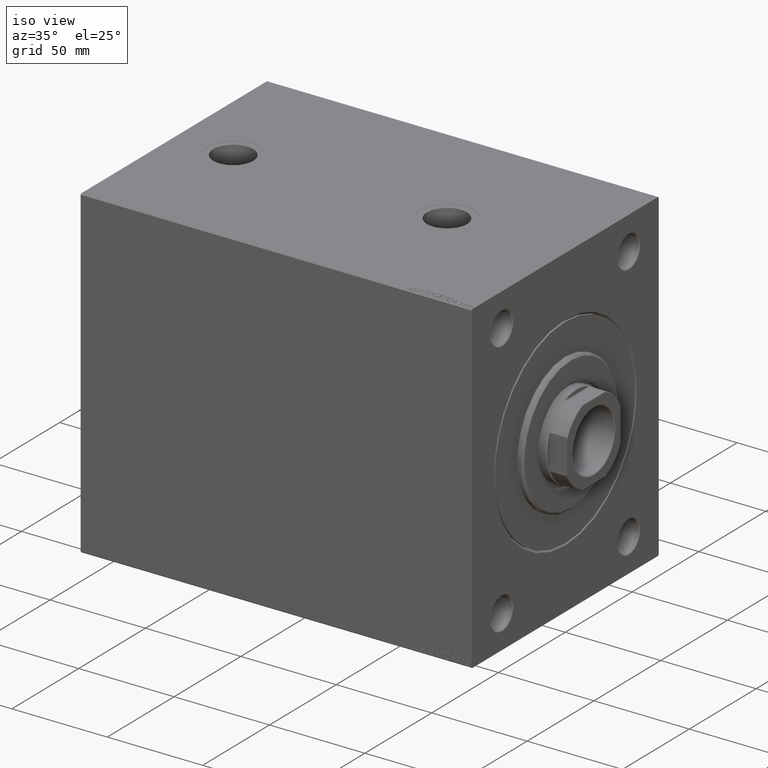
[diagram: clean part render]
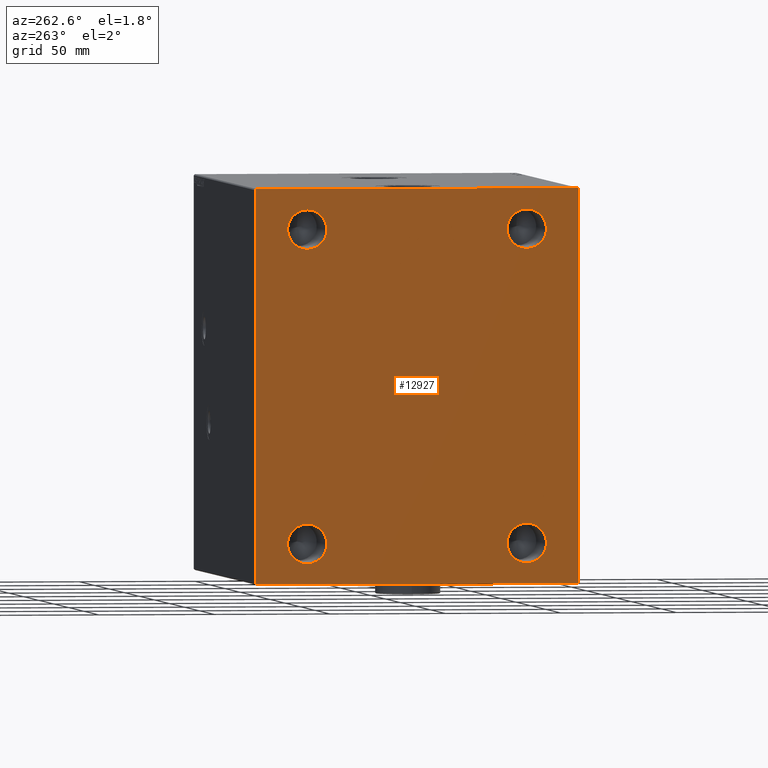
[diagram: tour spotlight — one face highlighted and labeled with its STEP entity id]
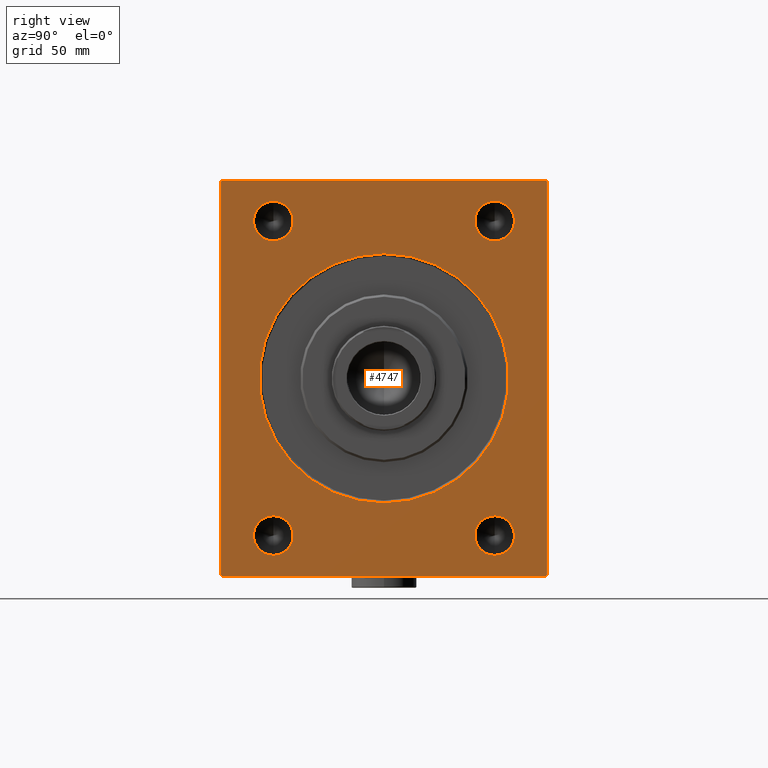
[diagram: tour spotlight — one face highlighted and labeled with its STEP entity id]
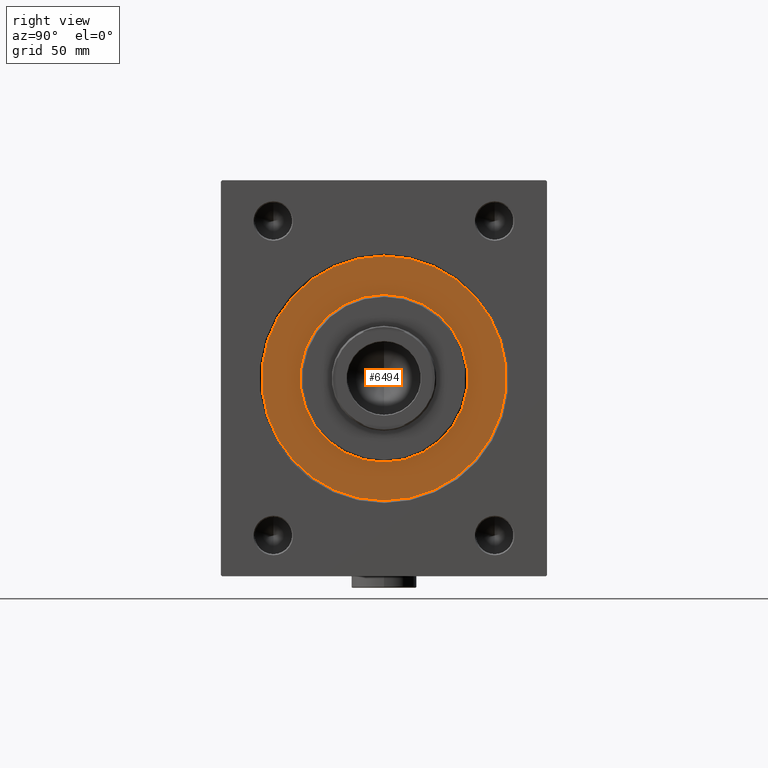
[diagram: tour spotlight — one face highlighted and labeled with its STEP entity id]
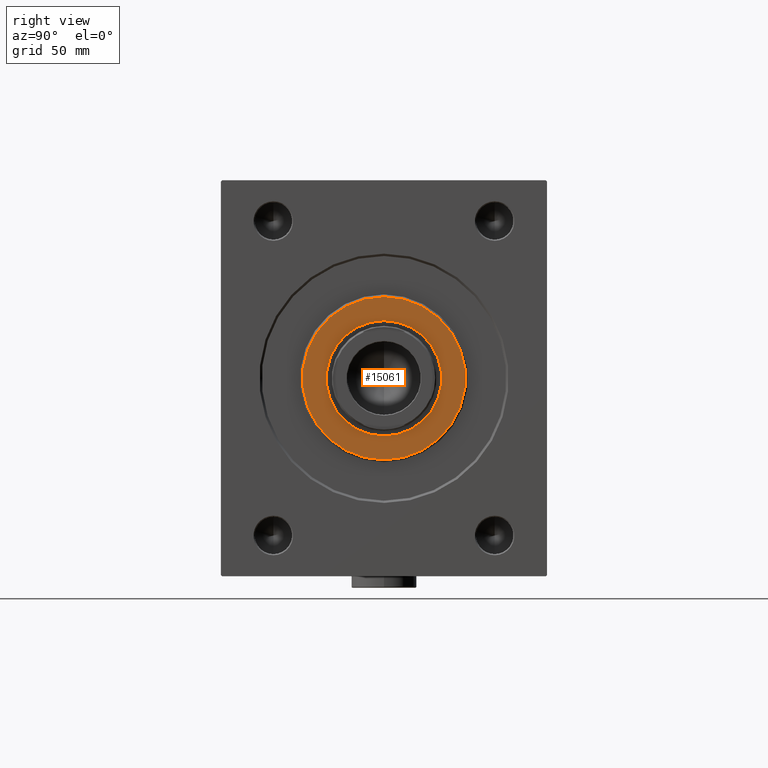
[diagram: tour spotlight — one face highlighted and labeled with its STEP entity id]
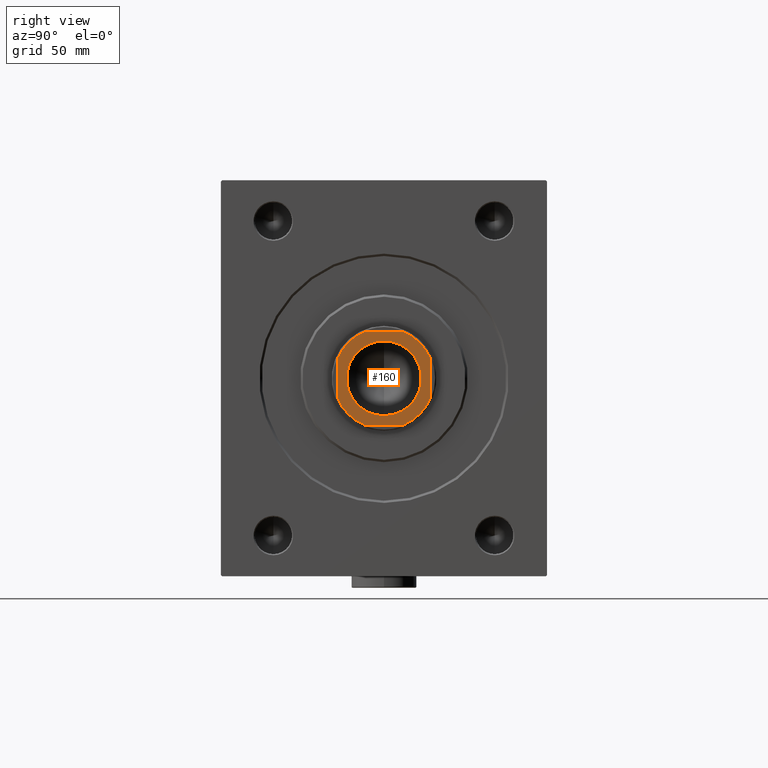
[diagram: tour spotlight — one face highlighted and labeled with its STEP entity id]
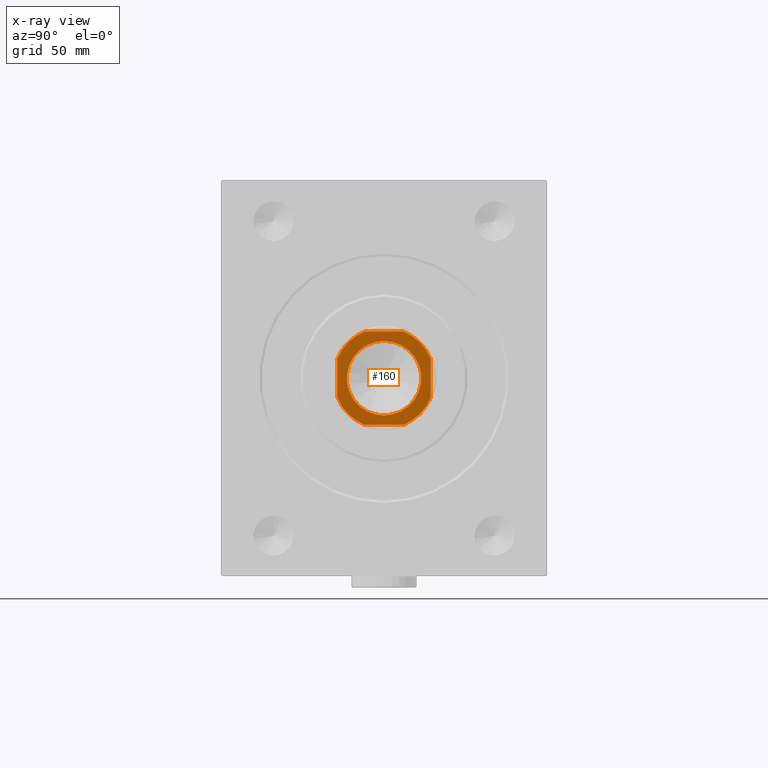
[diagram: x-ray of the same camera — body ghosted, this tour face saturated]
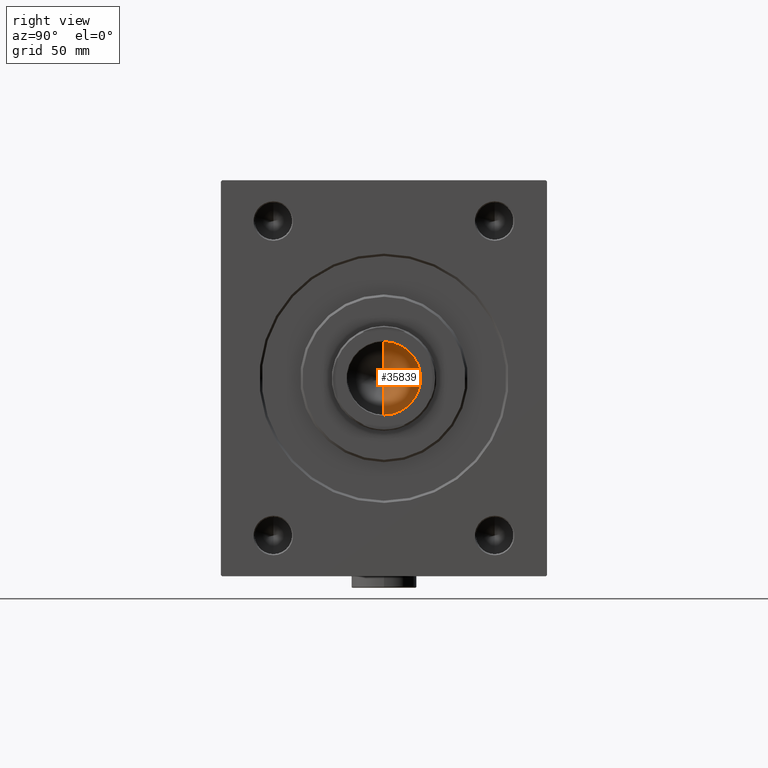
[diagram: tour spotlight — one face highlighted and labeled with its STEP entity id]
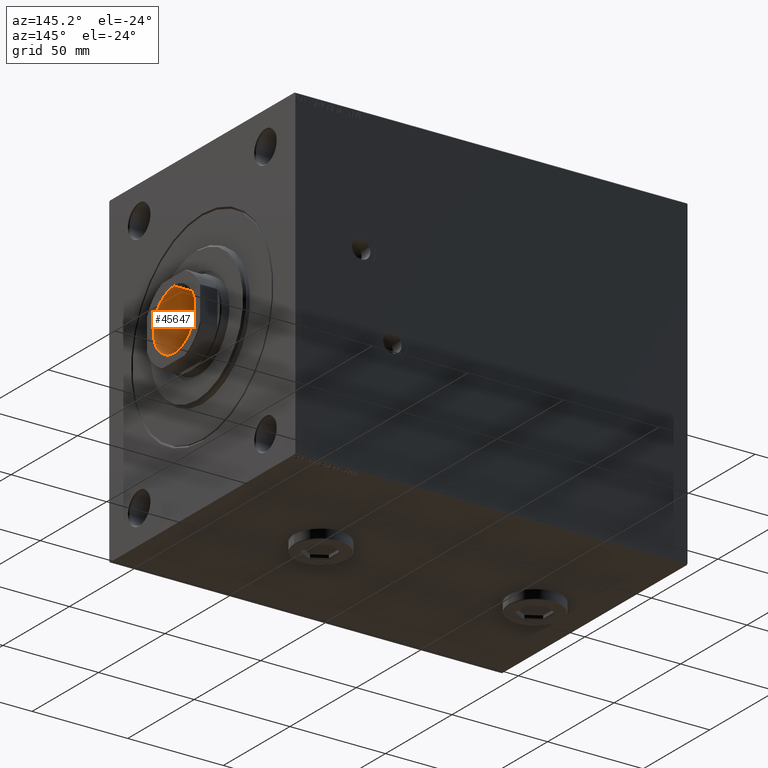
[diagram: tour spotlight — one face highlighted and labeled with its STEP entity id]
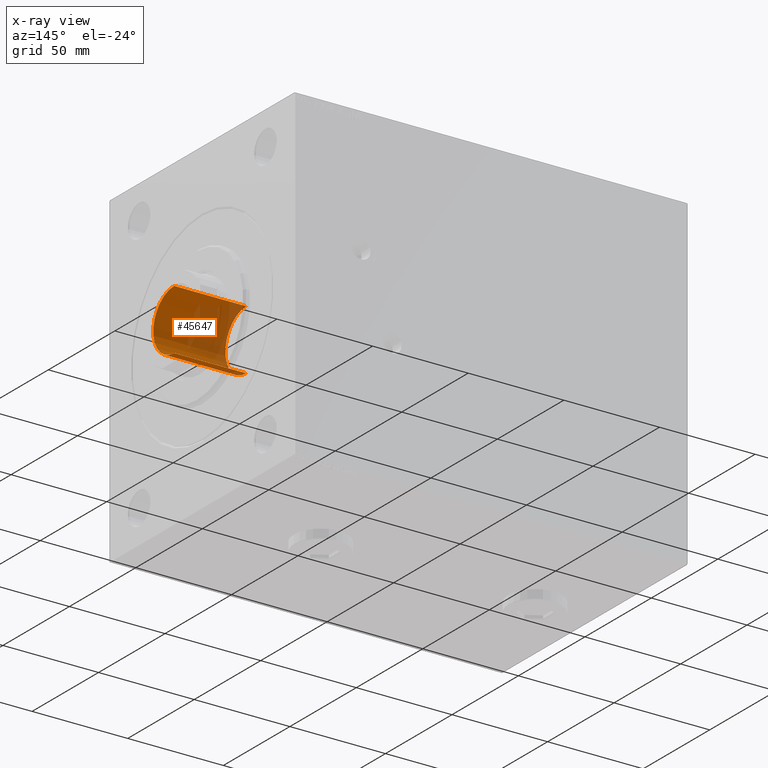
[diagram: x-ray of the same camera — body ghosted, this tour face saturated]
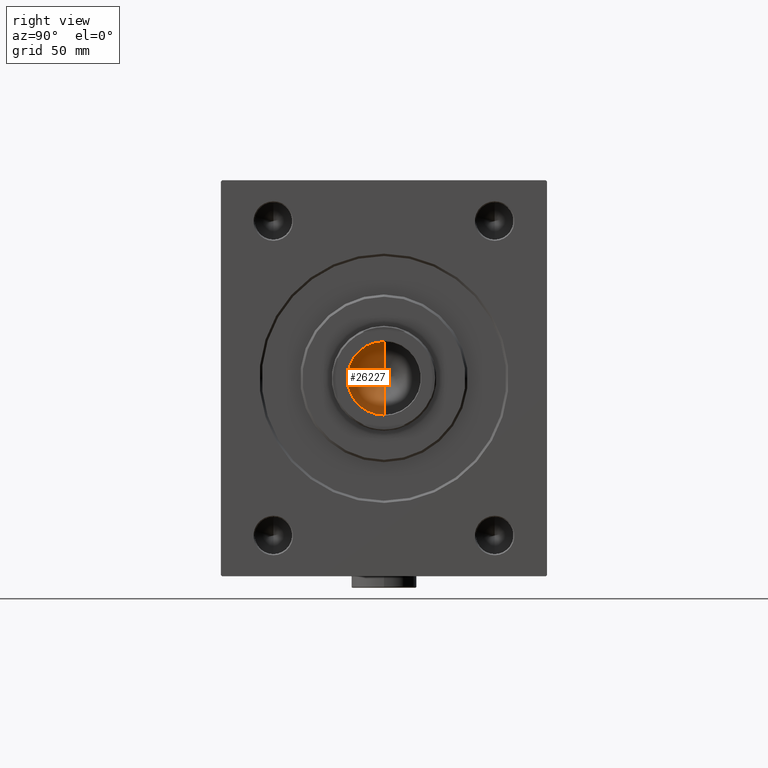
[diagram: tour spotlight — one face highlighted and labeled with its STEP entity id]
A machine part: a face-by-face anatomy tour. The part has 958 B-rep faces; the first image is the clean iso view, then the 8 largest visible faces are spotlighted one at a time (largest first), each with its STEP entity span.

Face 1 — auxiliary view, entity #12927. In plain terms, the highlighted planar face has unit normal (-1, -0, 0).
Definition (entity closure, byte-faithful):
#756 = VECTOR ( 'NONE', #7182, 1000.000000000000000 ) ;
#2176 = DIRECTION ( 'NONE',  ( 0.000000000000000000, 0.000000000000000000, -1.000000000000000000 ) ) ;
#2420 = EDGE_CURVE ( 'NONE', #11282, #5183, #39239, .T. ) ;
#2905 = VECTOR ( 'NONE', #32133, 1000.000000000000000 ) ;
#3338 = CIRCLE ( 'NONE', #21224, 8.500000000000007105 ) ;
#3346 = ORIENTED_EDGE ( 'NONE', *, *, #44763, .T. ) ;
#4212 = VERTEX_POINT ( 'NONE', #20825 ) ;
#4240 = DIRECTION ( 'NONE',  ( 0.000000000000000000, -1.632680918566406300E-16, 1.000000000000000000 ) ) ;
#4301 = VECTOR ( 'NONE', #29737, 1000.000000000000000 ) ;
#4381 = CIRCLE ( 'NONE', #11868, 8.500000000000007105 ) ;
#4383 = EDGE_CURVE ( 'NONE', #35621, #4212, #10798, .T. ) ;
#4433 = EDGE_CURVE ( 'NONE', #4212, #13472, #17793, .T. ) ;
#4461 = CIRCLE ( 'NONE', #29080, 8.500000000000007105 ) ;
#5183 = VERTEX_POINT ( 'NONE', #20396 ) ;
#5482 = CARTESIAN_POINT ( 'NONE',  ( 205.0000000000000000, 69.50000000000002842, 85.00000000000000000 ) ) ;
#5597 = CARTESIAN_POINT ( 'NONE',  ( 205.0000000000000000, -47.50000000000000000, 67.49999999999997158 ) ) ;
#6832 = DIRECTION ( 'NONE',  ( -0.000000000000000000, 0.7071067811865671127, 0.7071067811865279218 ) ) ;
#7182 = DIRECTION ( 'NONE',  ( 0.000000000000000000, 0.000000000000000000, -1.000000000000000000 ) ) ;
#7930 = CARTESIAN_POINT ( 'NONE',  ( 205.0000000000000000, -47.50000000000000000, 58.99999999999995737 ) ) ;
#8017 = CARTESIAN_POINT ( 'NONE',  ( 205.0000000000000000, 70.00000000000000000, 85.00000000000000000 ) ) ;
#8170 = VECTOR ( 'NONE', #36571, 1000.000000000000000 ) ;
#8274 = FACE_BOUND ( 'NONE', #41055, .T. ) ;
#9333 = EDGE_CURVE ( 'NONE', #12948, #33361, #10655, .T. ) ;
#9624 = CARTESIAN_POINT ( 'NONE',  ( 205.0000000000000000, 77.25000000000292744, 77.24999999999650413 ) ) ;
#9746 = DIRECTION ( 'NONE',  ( 0.000000000000000000, 1.000000000000000000, 0.000000000000000000 ) ) ;
#10124 = EDGE_CURVE ( 'NONE', #23479, #17122, #4381, .T. ) ;
#10476 = LINE ( 'NONE', #38973, #756 ) ;
#10655 = LINE ( 'NONE', #17869, #2905 ) ;
#10783 = DIRECTION ( 'NONE',  ( -0.000000000000000000, -0.7071067811865181518, 0.7071067811865769936 ) ) ;
#10798 = LINE ( 'NONE', #21282, #22090 ) ;
#11237 = CARTESIAN_POINT ( 'NONE',  ( 205.0000000000000000, -70.00000000000000000, 84.49999999999991473 ) ) ;
#11282 = VERTEX_POINT ( 'NONE', #33696 ) ;
#11283 = CARTESIAN_POINT ( 'NONE',  ( 205.0000000000000000, 47.50000000000000000, -67.50000000000002842 ) ) ;
#11868 = AXIS2_PLACEMENT_3D ( 'NONE', #21087, #17590, #27417 ) ;
#12023 = PLANE ( 'NONE',  #38833 ) ;
#12121 = CARTESIAN_POINT ( 'NONE',  ( 205.0000000000000000, 69.50000000000002842, -85.00000000000001421 ) ) ;
#12676 = ORIENTED_EDGE ( 'NONE', *, *, #38566, .F. ) ;
#12927 = ADVANCED_FACE ( 'NONE', ( #32570, #39824, #8274, #22493, #29766 ), #12023, .T. ) ;
#12948 = VERTEX_POINT ( 'NONE', #26458 ) ;
#12969 = ORIENTED_EDGE ( 'NONE', *, *, #4383, .T. ) ;
#13043 = EDGE_CURVE ( 'NONE', #19606, #35396, #22364, .T. ) ;
#13261 = LINE ( 'NONE', #35658, #13687 ) ;
#13472 = VERTEX_POINT ( 'NONE', #14543 ) ;
#13687 = VECTOR ( 'NONE', #9746, 1000.000000000000000 ) ;
#13906 = ORIENTED_EDGE ( 'NONE', *, *, #22757, .T. ) ;
#14195 = AXIS2_PLACEMENT_3D ( 'NONE', #25020, #14315, #28082 ) ;
#14315 = DIRECTION ( 'NONE',  ( 1.000000000000000000, -0.000000000000000000, -0.000000000000000000 ) ) ;
#14543 = CARTESIAN_POINT ( 'NONE',  ( 205.0000000000000000, 70.00000000000000000, 84.49999999999998579 ) ) ;
#15004 = CARTESIAN_POINT ( 'NONE',  ( 205.0000000000000000, -47.50000000000000000, -67.50000000000002842 ) ) ;
#15663 = CARTESIAN_POINT ( 'NONE',  ( 205.0000000000000000, -47.50000000000000000, -76.00000000000005684 ) ) ;
#15781 = CARTESIAN_POINT ( 'NONE',  ( 205.0000000000000000, -47.50000000000000000, -59.00000000000001421 ) ) ;
#17068 = ORIENTED_EDGE ( 'NONE', *, *, #13043, .F. ) ;
#17122 = VERTEX_POINT ( 'NONE', #15781 ) ;
#17457 = ORIENTED_EDGE ( 'NONE', *, *, #43352, .F. ) ;
#17590 = DIRECTION ( 'NONE',  ( 1.000000000000000000, -0.000000000000000000, -0.000000000000000000 ) ) ;
#17747 = ORIENTED_EDGE ( 'NONE', *, *, #20537, .F. ) ;
#17793 = LINE ( 'NONE', #39302, #25836 ) ;
#17869 = CARTESIAN_POINT ( 'NONE',  ( 205.0000000000000000, -77.24999999999801048, 77.25000000000230216 ) ) ;
#18044 = ORIENTED_EDGE ( 'NONE', *, *, #35313, .F. ) ;
#18603 = ORIENTED_EDGE ( 'NONE', *, *, #2420, .F. ) ;
#18743 = DIRECTION ( 'NONE',  ( 0.000000000000000000, 0.000000000000000000, -1.000000000000000000 ) ) ;
#19032 = DIRECTION ( 'NONE',  ( 1.000000000000000000, -0.000000000000000000, -0.000000000000000000 ) ) ;
#19058 = AXIS2_PLACEMENT_3D ( 'NONE', #44821, #26797, #27033 ) ;
#19501 = VERTEX_POINT ( 'NONE', #41608 ) ;
#19606 = VERTEX_POINT ( 'NONE', #35272 ) ;
#19865 = ORIENTED_EDGE ( 'NONE', *, *, #10124, .F. ) ;
#20035 = ORIENTED_EDGE ( 'NONE', *, *, #33956, .T. ) ;
#20396 = CARTESIAN_POINT ( 'NONE',  ( 205.0000000000000000, 47.50000000000000000, -76.00000000000005684 ) ) ;
#20537 = EDGE_CURVE ( 'NONE', #19501, #40804, #36933, .T. ) ;
#20825 = CARTESIAN_POINT ( 'NONE',  ( 205.0000000000000000, 70.00000000000002842, -84.50000000000004263 ) ) ;
#20854 = ORIENTED_EDGE ( 'NONE', *, *, #9333, .T. ) ;
#21087 = CARTESIAN_POINT ( 'NONE',  ( 205.0000000000000000, -47.50000000000000000, -67.50000000000002842 ) ) ;
#21224 = AXIS2_PLACEMENT_3D ( 'NONE', #11283, #21524, #25958 ) ;
#21282 = CARTESIAN_POINT ( 'NONE',  ( 205.0000000000000000, 77.24999999999809575, -77.25000000000238742 ) ) ;
#21480 = CIRCLE ( 'NONE', #29717, 8.500000000000007105 ) ;
#21524 = DIRECTION ( 'NONE',  ( 1.000000000000000000, -0.000000000000000000, -0.000000000000000000 ) ) ;
#21649 = ORIENTED_EDGE ( 'NONE', *, *, #26446, .F. ) ;
#22090 = VECTOR ( 'NONE', #6832, 1000.000000000000000 ) ;
#22364 = CIRCLE ( 'NONE', #14195, 8.500000000000007105 ) ;
#22389 = CARTESIAN_POINT ( 'NONE',  ( 205.0000000000000000, -47.50000000000000000, 67.49999999999997158 ) ) ;
#22493 = FACE_BOUND ( 'NONE', #26114, .T. ) ;
#22757 = EDGE_CURVE ( 'NONE', #37744, #35621, #13261, .T. ) ;
#22919 = VERTEX_POINT ( 'NONE', #5482 ) ;
#23333 = DIRECTION ( 'NONE',  ( 1.000000000000000000, -0.000000000000000000, -0.000000000000000000 ) ) ;
#23479 = VERTEX_POINT ( 'NONE', #15663 ) ;
#25020 = CARTESIAN_POINT ( 'NONE',  ( 205.0000000000000000, 47.50000000000000000, 67.49999999999997158 ) ) ;
#25228 = CIRCLE ( 'NONE', #40931, 8.500000000000007105 ) ;
#25748 = ORIENTED_EDGE ( 'NONE', *, *, #42159, .T. ) ;
#25836 = VECTOR ( 'NONE', #4240, 1000.000000000000000 ) ;
#25958 = DIRECTION ( 'NONE',  ( 0.000000000000000000, 0.000000000000000000, -1.000000000000000000 ) ) ;
#26114 = EDGE_LOOP ( 'NONE', ( #18603, #21649 ) ) ;
#26234 = CARTESIAN_POINT ( 'NONE',  ( 205.0000000000000000, 0.000000000000000000, 0.000000000000000000 ) ) ;
#26446 = EDGE_CURVE ( 'NONE', #5183, #11282, #3338, .T. ) ;
#26458 = CARTESIAN_POINT ( 'NONE',  ( 205.0000000000000000, -69.49999999999992895, 84.99999999999997158 ) ) ;
#26797 = DIRECTION ( 'NONE',  ( 1.000000000000000000, -0.000000000000000000, -0.000000000000000000 ) ) ;
#27033 = DIRECTION ( 'NONE',  ( 0.000000000000000000, 0.000000000000000000, -1.000000000000000000 ) ) ;
#27417 = DIRECTION ( 'NONE',  ( 0.000000000000000000, 0.000000000000000000, -1.000000000000000000 ) ) ;
#28082 = DIRECTION ( 'NONE',  ( 0.000000000000000000, 0.000000000000000000, -1.000000000000000000 ) ) ;
#29080 = AXIS2_PLACEMENT_3D ( 'NONE', #36813, #19032, #44294 ) ;
#29182 = EDGE_LOOP ( 'NONE', ( #17457, #17068 ) ) ;
#29260 = DIRECTION ( 'NONE',  ( 1.000000000000000000, -0.000000000000000000, -0.000000000000000000 ) ) ;
#29717 = AXIS2_PLACEMENT_3D ( 'NONE', #15004, #29260, #32297 ) ;
#29737 = DIRECTION ( 'NONE',  ( 0.000000000000000000, -1.000000000000000000, -2.973811673103097665E-16 ) ) ;
#29766 = FACE_OUTER_BOUND ( 'NONE', #44257, .T. ) ;
#31748 = EDGE_CURVE ( 'NONE', #13472, #22919, #41651, .T. ) ;
#32133 = DIRECTION ( 'NONE',  ( 0.000000000000000000, -0.7071067811865671127, -0.7071067811865279218 ) ) ;
#32241 = VERTEX_POINT ( 'NONE', #44824 ) ;
#32297 = DIRECTION ( 'NONE',  ( 0.000000000000000000, 0.000000000000000000, -1.000000000000000000 ) ) ;
#32435 = AXIS2_PLACEMENT_3D ( 'NONE', #22389, #32692, #40413 ) ;
#32570 = FACE_BOUND ( 'NONE', #29182, .T. ) ;
#32692 = DIRECTION ( 'NONE',  ( 1.000000000000000000, -0.000000000000000000, -0.000000000000000000 ) ) ;
#33361 = VERTEX_POINT ( 'NONE', #11237 ) ;
#33696 = CARTESIAN_POINT ( 'NONE',  ( 205.0000000000000000, 47.50000000000000000, -59.00000000000001421 ) ) ;
#33956 = EDGE_CURVE ( 'NONE', #22919, #12948, #40031, .T. ) ;
#35272 = CARTESIAN_POINT ( 'NONE',  ( 205.0000000000000000, 47.50000000000000000, 58.99999999999995737 ) ) ;
#35313 = EDGE_CURVE ( 'NONE', #40804, #19501, #25228, .T. ) ;
#35396 = VERTEX_POINT ( 'NONE', #42756 ) ;
#35621 = VERTEX_POINT ( 'NONE', #12121 ) ;
#35658 = CARTESIAN_POINT ( 'NONE',  ( 205.0000000000000000, -70.00000000000000000, -85.00000000000001421 ) ) ;
#36571 = DIRECTION ( 'NONE',  ( -0.000000000000000000, 0.7071067811865279218, -0.7071067811865671127 ) ) ;
#36813 = CARTESIAN_POINT ( 'NONE',  ( 205.0000000000000000, 47.50000000000000000, 67.49999999999997158 ) ) ;
#36933 = CIRCLE ( 'NONE', #32435, 8.500000000000007105 ) ;
#37744 = VERTEX_POINT ( 'NONE', #43056 ) ;
#37820 = VECTOR ( 'NONE', #10783, 1000.000000000000000 ) ;
#38566 = EDGE_CURVE ( 'NONE', #17122, #23479, #21480, .T. ) ;
#38833 = AXIS2_PLACEMENT_3D ( 'NONE', #26234, #40974, #2176 ) ;
#38893 = ORIENTED_EDGE ( 'NONE', *, *, #31748, .T. ) ;
#38973 = CARTESIAN_POINT ( 'NONE',  ( 205.0000000000000000, -70.00000000000000000, 84.99999999999997158 ) ) ;
#38985 = EDGE_LOOP ( 'NONE', ( #17747, #18044 ) ) ;
#39239 = CIRCLE ( 'NONE', #19058, 8.500000000000007105 ) ;
#39302 = CARTESIAN_POINT ( 'NONE',  ( 205.0000000000000000, 70.00000000000002842, -85.00000000000001421 ) ) ;
#39824 = FACE_BOUND ( 'NONE', #38985, .T. ) ;
#40031 = LINE ( 'NONE', #8017, #4301 ) ;
#40315 = LINE ( 'NONE', #43131, #8170 ) ;
#40413 = DIRECTION ( 'NONE',  ( 0.000000000000000000, 0.000000000000000000, -1.000000000000000000 ) ) ;
#40804 = VERTEX_POINT ( 'NONE', #7930 ) ;
#40931 = AXIS2_PLACEMENT_3D ( 'NONE', #5597, #23333, #18743 ) ;
#40974 = DIRECTION ( 'NONE',  ( 1.000000000000000000, 0.000000000000000000, 0.000000000000000000 ) ) ;
#41055 = EDGE_LOOP ( 'NONE', ( #12676, #19865 ) ) ;
#41608 = CARTESIAN_POINT ( 'NONE',  ( 205.0000000000000000, -47.50000000000000000, 76.00000000000000000 ) ) ;
#41651 = LINE ( 'NONE', #9624, #37820 ) ;
#42155 = ORIENTED_EDGE ( 'NONE', *, *, #4433, .T. ) ;
#42159 = EDGE_CURVE ( 'NONE', #32241, #37744, #40315, .T. ) ;
#42756 = CARTESIAN_POINT ( 'NONE',  ( 205.0000000000000000, 47.50000000000000000, 76.00000000000000000 ) ) ;
#43056 = CARTESIAN_POINT ( 'NONE',  ( 205.0000000000000000, -69.50000000000002842, -85.00000000000001421 ) ) ;
#43131 = CARTESIAN_POINT ( 'NONE',  ( 205.0000000000000000, -77.25000000000196110, -77.24999999999766942 ) ) ;
#43352 = EDGE_CURVE ( 'NONE', #35396, #19606, #4461, .T. ) ;
#44257 = EDGE_LOOP ( 'NONE', ( #20035, #20854, #3346, #25748, #13906, #12969, #42155, #38893 ) ) ;
#44294 = DIRECTION ( 'NONE',  ( 0.000000000000000000, 0.000000000000000000, -1.000000000000000000 ) ) ;
#44763 = EDGE_CURVE ( 'NONE', #33361, #32241, #10476, .T. ) ;
#44821 = CARTESIAN_POINT ( 'NONE',  ( 205.0000000000000000, 47.50000000000000000, -67.50000000000002842 ) ) ;
#44824 = CARTESIAN_POINT ( 'NONE',  ( 205.0000000000000000, -70.00000000000000000, -84.50000000000001421 ) ) ;

Face 2 — right view, entity #4747. In plain terms, the highlighted planar face has unit normal (-1, -0, 0).
Definition (entity closure, byte-faithful):
#226 = DIRECTION ( 'NONE',  ( 1.000000000000000000, 0.000000000000000000, 0.000000000000000000 ) ) ;
#403 = CARTESIAN_POINT ( 'NONE',  ( 0.000000000000000000, 70.00000000000000000, 85.00000000000000000 ) ) ;
#852 = VERTEX_POINT ( 'NONE', #7940 ) ;
#1469 = DIRECTION ( 'NONE',  ( 1.000000000000000000, 0.000000000000000000, 0.000000000000000000 ) ) ;
#1688 = DIRECTION ( 'NONE',  ( 0.000000000000000000, 0.000000000000000000, -1.000000000000000000 ) ) ;
#1873 = CARTESIAN_POINT ( 'NONE',  ( 0.000000000000000000, -70.00000000000000000, -84.50000000000001421 ) ) ;
#1888 = EDGE_CURVE ( 'NONE', #13637, #35581, #8188, .T. ) ;
#2109 = DIRECTION ( 'NONE',  ( 0.000000000000000000, 0.000000000000000000, -1.000000000000000000 ) ) ;
#2396 = CARTESIAN_POINT ( 'NONE',  ( 0.000000000000000000, 47.50000000000000000, 67.49999999999997158 ) ) ;
#2563 = CARTESIAN_POINT ( 'NONE',  ( 0.000000000000000000, -70.00000000000000000, 84.49999999999991473 ) ) ;
#2856 = LINE ( 'NONE', #24327, #38987 ) ;
#3275 = ORIENTED_EDGE ( 'NONE', *, *, #12300, .T. ) ;
#3738 = AXIS2_PLACEMENT_3D ( 'NONE', #34344, #19607, #2109 ) ;
#4142 = DIRECTION ( 'NONE',  ( 0.000000000000000000, -1.000000000000000000, -2.973811673103097665E-16 ) ) ;
#4343 = DIRECTION ( 'NONE',  ( 1.000000000000000000, 0.000000000000000000, 0.000000000000000000 ) ) ;
#4747 = ADVANCED_FACE ( 'NONE', ( #46041, #39488, #13796, #42994, #25206, #17970 ), #10288, .F. ) ;
#5494 = CARTESIAN_POINT ( 'NONE',  ( 0.000000000000000000, 69.50000000000002842, 85.00000000000000000 ) ) ;
#6376 = VERTEX_POINT ( 'NONE', #41425 ) ;
#6567 = ORIENTED_EDGE ( 'NONE', *, *, #38723, .T. ) ;
#6641 = VERTEX_POINT ( 'NONE', #1873 ) ;
#6688 = VERTEX_POINT ( 'NONE', #2563 ) ;
#7475 = DIRECTION ( 'NONE',  ( 0.000000000000000000, 0.000000000000000000, -1.000000000000000000 ) ) ;
#7940 = CARTESIAN_POINT ( 'NONE',  ( 0.000000000000000000, 6.551860375438349359E-15, -53.50000000000007816 ) ) ;
#8029 = CARTESIAN_POINT ( 'NONE',  ( 0.000000000000000000, 0.000000000000000000, 0.000000000000000000 ) ) ;
#8188 = LINE ( 'NONE', #19125, #28012 ) ;
#8395 = DIRECTION ( 'NONE',  ( 0.000000000000000000, 0.000000000000000000, -1.000000000000000000 ) ) ;
#8462 = ORIENTED_EDGE ( 'NONE', *, *, #19389, .T. ) ;
#8934 = AXIS2_PLACEMENT_3D ( 'NONE', #12531, #30734, #23696 ) ;
#8964 = CIRCLE ( 'NONE', #8934, 8.500000000000007105 ) ;
#9214 = DIRECTION ( 'NONE',  ( 1.000000000000000000, 0.000000000000000000, 0.000000000000000000 ) ) ;
#9807 = DIRECTION ( 'NONE',  ( 1.000000000000000000, 0.000000000000000000, 0.000000000000000000 ) ) ;
#10288 = PLANE ( 'NONE',  #16932 ) ;
#10732 = LINE ( 'NONE', #45564, #35687 ) ;
#10788 = ORIENTED_EDGE ( 'NONE', *, *, #1888, .F. ) ;
#10875 = VERTEX_POINT ( 'NONE', #43607 ) ;
#11195 = AXIS2_PLACEMENT_3D ( 'NONE', #2396, #1469, #45160 ) ;
#11216 = CIRCLE ( 'NONE', #3738, 53.50000000000007816 ) ;
#11688 = VERTEX_POINT ( 'NONE', #24909 ) ;
#11899 = DIRECTION ( 'NONE',  ( -0.000000000000000000, -0.7071067811865279218, 0.7071067811865671127 ) ) ;
#12206 = VERTEX_POINT ( 'NONE', #32793 ) ;
#12300 = EDGE_CURVE ( 'NONE', #28219, #34996, #14916, .T. ) ;
#12531 = CARTESIAN_POINT ( 'NONE',  ( 0.000000000000000000, -47.50000000000000000, 67.49999999999997158 ) ) ;
#12804 = DIRECTION ( 'NONE',  ( 0.000000000000000000, -1.632680918566406300E-16, 1.000000000000000000 ) ) ;
#13010 = EDGE_LOOP ( 'NONE', ( #15702, #8462, #44990, #16243, #35232, #13871, #10788, #14271 ) ) ;
#13029 = CARTESIAN_POINT ( 'NONE',  ( 0.000000000000000000, 70.00000000000002842, -85.00000000000001421 ) ) ;
#13637 = VERTEX_POINT ( 'NONE', #40014 ) ;
#13796 = FACE_BOUND ( 'NONE', #16979, .T. ) ;
#13871 = ORIENTED_EDGE ( 'NONE', *, *, #46024, .T. ) ;
#14271 = ORIENTED_EDGE ( 'NONE', *, *, #23884, .T. ) ;
#14916 = CIRCLE ( 'NONE', #11195, 8.500000000000007105 ) ;
#15084 = CARTESIAN_POINT ( 'NONE',  ( 0.000000000000000000, -47.50000000000000000, 67.49999999999997158 ) ) ;
#15104 = LINE ( 'NONE', #5494, #20855 ) ;
#15325 = EDGE_CURVE ( 'NONE', #34996, #28219, #19355, .T. ) ;
#15378 = CARTESIAN_POINT ( 'NONE',  ( 0.000000000000000000, -69.50000000000002842, -85.00000000000001421 ) ) ;
#15515 = VERTEX_POINT ( 'NONE', #20282 ) ;
#15627 = DIRECTION ( 'NONE',  ( 1.000000000000000000, 0.000000000000000000, 0.000000000000000000 ) ) ;
#15657 = CARTESIAN_POINT ( 'NONE',  ( 0.000000000000000000, -47.50000000000000000, -59.00000000000002132 ) ) ;
#15702 = ORIENTED_EDGE ( 'NONE', *, *, #35457, .F. ) ;
#16243 = ORIENTED_EDGE ( 'NONE', *, *, #17055, .T. ) ;
#16932 = AXIS2_PLACEMENT_3D ( 'NONE', #32231, #226, #7475 ) ;
#16979 = EDGE_LOOP ( 'NONE', ( #20786, #32537 ) ) ;
#17024 = AXIS2_PLACEMENT_3D ( 'NONE', #8029, #26443, #1688 ) ;
#17055 = EDGE_CURVE ( 'NONE', #10875, #19971, #15104, .T. ) ;
#17636 = VERTEX_POINT ( 'NONE', #36713 ) ;
#17807 = EDGE_LOOP ( 'NONE', ( #43768, #26591 ) ) ;
#17970 = FACE_OUTER_BOUND ( 'NONE', #13010, .T. ) ;
#18139 = VERTEX_POINT ( 'NONE', #19214 ) ;
#18819 = DIRECTION ( 'NONE',  ( -0.000000000000000000, 0.7071067811865181518, -0.7071067811865769936 ) ) ;
#19125 = CARTESIAN_POINT ( 'NONE',  ( 0.000000000000000000, -70.00000000000000000, -85.00000000000001421 ) ) ;
#19166 = DIRECTION ( 'NONE',  ( 0.000000000000000000, 0.000000000000000000, -1.000000000000000000 ) ) ;
#19214 = CARTESIAN_POINT ( 'NONE',  ( 0.000000000000000000, 70.00000000000002842, -84.50000000000004263 ) ) ;
#19355 = CIRCLE ( 'NONE', #30551, 8.500000000000007105 ) ;
#19389 = EDGE_CURVE ( 'NONE', #6688, #15515, #2856, .T. ) ;
#19607 = DIRECTION ( 'NONE',  ( 1.000000000000000000, 0.000000000000000000, 0.000000000000000000 ) ) ;
#19759 = CARTESIAN_POINT ( 'NONE',  ( 0.000000000000000000, 47.50000000000000000, 75.99999999999998579 ) ) ;
#19971 = VERTEX_POINT ( 'NONE', #45752 ) ;
#20049 = ORIENTED_EDGE ( 'NONE', *, *, #32002, .T. ) ;
#20171 = CARTESIAN_POINT ( 'NONE',  ( 0.000000000000000000, 47.50000000000000000, 67.49999999999997158 ) ) ;
#20282 = CARTESIAN_POINT ( 'NONE',  ( 0.000000000000000000, -69.49999999999992895, 84.99999999999997158 ) ) ;
#20786 = ORIENTED_EDGE ( 'NONE', *, *, #29181, .T. ) ;
#20815 = EDGE_CURVE ( 'NONE', #10875, #15515, #22336, .T. ) ;
#20855 = VECTOR ( 'NONE', #18819, 1000.000000000000000 ) ;
#21050 = DIRECTION ( 'NONE',  ( -0.000000000000000000, 0.7071067811865671127, 0.7071067811865279218 ) ) ;
#21978 = EDGE_LOOP ( 'NONE', ( #3275, #24238 ) ) ;
#22336 = LINE ( 'NONE', #403, #29886 ) ;
#22812 = LINE ( 'NONE', #13029, #44435 ) ;
#22911 = LINE ( 'NONE', #26654, #44107 ) ;
#23696 = DIRECTION ( 'NONE',  ( 0.000000000000000000, 0.000000000000000000, -1.000000000000000000 ) ) ;
#23884 = EDGE_CURVE ( 'NONE', #13637, #6641, #40845, .T. ) ;
#23926 = ORIENTED_EDGE ( 'NONE', *, *, #37841, .T. ) ;
#24238 = ORIENTED_EDGE ( 'NONE', *, *, #15325, .T. ) ;
#24327 = CARTESIAN_POINT ( 'NONE',  ( 0.000000000000000000, -70.00000000000000000, 84.49999999999991473 ) ) ;
#24909 = CARTESIAN_POINT ( 'NONE',  ( 0.000000000000000000, -47.50000000000000000, 58.99999999999997158 ) ) ;
#25163 = CIRCLE ( 'NONE', #29685, 8.500000000000007105 ) ;
#25206 = FACE_BOUND ( 'NONE', #31911, .T. ) ;
#26443 = DIRECTION ( 'NONE',  ( 1.000000000000000000, 0.000000000000000000, 0.000000000000000000 ) ) ;
#26591 = ORIENTED_EDGE ( 'NONE', *, *, #43616, .T. ) ;
#26654 = CARTESIAN_POINT ( 'NONE',  ( 0.000000000000000000, 70.00000000000002842, -84.50000000000004263 ) ) ;
#27546 = DIRECTION ( 'NONE',  ( 0.000000000000000000, 0.000000000000000000, -1.000000000000000000 ) ) ;
#28012 = VECTOR ( 'NONE', #36455, 1000.000000000000000 ) ;
#28209 = CIRCLE ( 'NONE', #35681, 8.500000000000007105 ) ;
#28215 = CIRCLE ( 'NONE', #17024, 53.50000000000007816 ) ;
#28219 = VERTEX_POINT ( 'NONE', #19759 ) ;
#28703 = CARTESIAN_POINT ( 'NONE',  ( 0.000000000000000000, -47.50000000000000000, -76.00000000000004263 ) ) ;
#29020 = EDGE_LOOP ( 'NONE', ( #6567, #20049 ) ) ;
#29062 = EDGE_CURVE ( 'NONE', #18139, #19971, #22812, .T. ) ;
#29181 = EDGE_CURVE ( 'NONE', #42431, #11688, #43709, .T. ) ;
#29685 = AXIS2_PLACEMENT_3D ( 'NONE', #43518, #32756, #19166 ) ;
#29886 = VECTOR ( 'NONE', #4142, 1000.000000000000000 ) ;
#30348 = AXIS2_PLACEMENT_3D ( 'NONE', #44406, #9807, #30372 ) ;
#30372 = DIRECTION ( 'NONE',  ( 0.000000000000000000, 0.000000000000000000, -1.000000000000000000 ) ) ;
#30551 = AXIS2_PLACEMENT_3D ( 'NONE', #20171, #9214, #33740 ) ;
#30734 = DIRECTION ( 'NONE',  ( 1.000000000000000000, 0.000000000000000000, 0.000000000000000000 ) ) ;
#31520 = CARTESIAN_POINT ( 'NONE',  ( 0.000000000000000000, 47.50000000000000000, 58.99999999999997158 ) ) ;
#31850 = CIRCLE ( 'NONE', #30348, 8.500000000000007105 ) ;
#31911 = EDGE_LOOP ( 'NONE', ( #44496, #23926 ) ) ;
#32002 = EDGE_CURVE ( 'NONE', #35576, #34821, #31850, .T. ) ;
#32152 = DIRECTION ( 'NONE',  ( 0.000000000000000000, 0.000000000000000000, -1.000000000000000000 ) ) ;
#32231 = CARTESIAN_POINT ( 'NONE',  ( 0.000000000000000000, 0.000000000000000000, 0.000000000000000000 ) ) ;
#32537 = ORIENTED_EDGE ( 'NONE', *, *, #44244, .T. ) ;
#32756 = DIRECTION ( 'NONE',  ( 1.000000000000000000, 0.000000000000000000, 0.000000000000000000 ) ) ;
#32793 = CARTESIAN_POINT ( 'NONE',  ( 0.000000000000000000, 0.000000000000000000, 53.50000000000007816 ) ) ;
#33217 = DIRECTION ( 'NONE',  ( 0.000000000000000000, -0.7071067811865671127, -0.7071067811865279218 ) ) ;
#33740 = DIRECTION ( 'NONE',  ( 0.000000000000000000, 0.000000000000000000, -1.000000000000000000 ) ) ;
#34344 = CARTESIAN_POINT ( 'NONE',  ( 0.000000000000000000, 0.000000000000000000, 0.000000000000000000 ) ) ;
#34369 = DIRECTION ( 'NONE',  ( 0.000000000000000000, 0.000000000000000000, -1.000000000000000000 ) ) ;
#34821 = VERTEX_POINT ( 'NONE', #15657 ) ;
#34939 = CIRCLE ( 'NONE', #40928, 8.500000000000007105 ) ;
#34996 = VERTEX_POINT ( 'NONE', #31520 ) ;
#35232 = ORIENTED_EDGE ( 'NONE', *, *, #29062, .F. ) ;
#35457 = EDGE_CURVE ( 'NONE', #6688, #6641, #10732, .T. ) ;
#35576 = VERTEX_POINT ( 'NONE', #28703 ) ;
#35581 = VERTEX_POINT ( 'NONE', #39469 ) ;
#35681 = AXIS2_PLACEMENT_3D ( 'NONE', #41398, #42084, #34369 ) ;
#35687 = VECTOR ( 'NONE', #27546, 1000.000000000000000 ) ;
#36032 = EDGE_CURVE ( 'NONE', #12206, #852, #28215, .T. ) ;
#36455 = DIRECTION ( 'NONE',  ( 0.000000000000000000, 1.000000000000000000, 0.000000000000000000 ) ) ;
#36713 = CARTESIAN_POINT ( 'NONE',  ( 0.000000000000000000, 47.50000000000000000, -59.00000000000002132 ) ) ;
#37841 = EDGE_CURVE ( 'NONE', #6376, #17636, #25163, .T. ) ;
#38640 = CARTESIAN_POINT ( 'NONE',  ( 0.000000000000000000, -47.50000000000000000, 75.99999999999998579 ) ) ;
#38723 = EDGE_CURVE ( 'NONE', #34821, #35576, #28209, .T. ) ;
#38987 = VECTOR ( 'NONE', #21050, 1000.000000000000000 ) ;
#39106 = VECTOR ( 'NONE', #11899, 1000.000000000000000 ) ;
#39469 = CARTESIAN_POINT ( 'NONE',  ( 0.000000000000000000, 69.50000000000002842, -85.00000000000001421 ) ) ;
#39488 = FACE_BOUND ( 'NONE', #29020, .T. ) ;
#39967 = AXIS2_PLACEMENT_3D ( 'NONE', #15084, #4343, #32152 ) ;
#40014 = CARTESIAN_POINT ( 'NONE',  ( 0.000000000000000000, -69.50000000000002842, -85.00000000000001421 ) ) ;
#40188 = CARTESIAN_POINT ( 'NONE',  ( 0.000000000000000000, 47.50000000000000000, -67.50000000000002842 ) ) ;
#40777 = EDGE_CURVE ( 'NONE', #17636, #6376, #34939, .T. ) ;
#40845 = LINE ( 'NONE', #15378, #39106 ) ;
#40928 = AXIS2_PLACEMENT_3D ( 'NONE', #40188, #15627, #8395 ) ;
#41398 = CARTESIAN_POINT ( 'NONE',  ( 0.000000000000000000, -47.50000000000000000, -67.50000000000002842 ) ) ;
#41425 = CARTESIAN_POINT ( 'NONE',  ( 0.000000000000000000, 47.50000000000000000, -76.00000000000004263 ) ) ;
#42084 = DIRECTION ( 'NONE',  ( 1.000000000000000000, 0.000000000000000000, 0.000000000000000000 ) ) ;
#42431 = VERTEX_POINT ( 'NONE', #38640 ) ;
#42994 = FACE_BOUND ( 'NONE', #21978, .T. ) ;
#43518 = CARTESIAN_POINT ( 'NONE',  ( 0.000000000000000000, 47.50000000000000000, -67.50000000000002842 ) ) ;
#43607 = CARTESIAN_POINT ( 'NONE',  ( 0.000000000000000000, 69.50000000000002842, 85.00000000000000000 ) ) ;
#43616 = EDGE_CURVE ( 'NONE', #852, #12206, #11216, .T. ) ;
#43709 = CIRCLE ( 'NONE', #39967, 8.500000000000007105 ) ;
#43768 = ORIENTED_EDGE ( 'NONE', *, *, #36032, .T. ) ;
#44107 = VECTOR ( 'NONE', #33217, 1000.000000000000000 ) ;
#44244 = EDGE_CURVE ( 'NONE', #11688, #42431, #8964, .T. ) ;
#44406 = CARTESIAN_POINT ( 'NONE',  ( 0.000000000000000000, -47.50000000000000000, -67.50000000000002842 ) ) ;
#44435 = VECTOR ( 'NONE', #12804, 1000.000000000000000 ) ;
#44496 = ORIENTED_EDGE ( 'NONE', *, *, #40777, .T. ) ;
#44990 = ORIENTED_EDGE ( 'NONE', *, *, #20815, .F. ) ;
#45160 = DIRECTION ( 'NONE',  ( 0.000000000000000000, 0.000000000000000000, -1.000000000000000000 ) ) ;
#45564 = CARTESIAN_POINT ( 'NONE',  ( 0.000000000000000000, -70.00000000000000000, 84.99999999999997158 ) ) ;
#45752 = CARTESIAN_POINT ( 'NONE',  ( 0.000000000000000000, 70.00000000000000000, 84.49999999999998579 ) ) ;
#46024 = EDGE_CURVE ( 'NONE', #18139, #35581, #22911, .T. ) ;
#46041 = FACE_BOUND ( 'NONE', #17807, .T. ) ;

Face 3 — right view, entity #6494. In plain terms, the highlighted planar face has unit normal (-1, 0, 0).
Definition (entity closure, byte-faithful):
#5326 = DIRECTION ( 'NONE',  ( -1.000000000000000000, 0.000000000000000000, 0.000000000000000000 ) ) ;
#5949 = CARTESIAN_POINT ( 'NONE',  ( 0.000000000000000000, 0.000000000000000000, 0.000000000000000000 ) ) ;
#6494 = ADVANCED_FACE ( 'NONE', ( #29001, #43272 ), #11259, .F. ) ;
#7362 = EDGE_CURVE ( 'NONE', #32008, #35529, #40904, .T. ) ;
#8360 = DIRECTION ( 'NONE',  ( 0.000000000000000000, 0.000000000000000000, -1.000000000000000000 ) ) ;
#8608 = CARTESIAN_POINT ( 'NONE',  ( 0.000000000000000000, 0.000000000000000000, 0.000000000000000000 ) ) ;
#8839 = DIRECTION ( 'NONE',  ( 0.000000000000000000, 0.000000000000000000, 1.000000000000000000 ) ) ;
#10284 = AXIS2_PLACEMENT_3D ( 'NONE', #21345, #31649, #20412 ) ;
#11259 = PLANE ( 'NONE',  #17713 ) ;
#11457 = EDGE_LOOP ( 'NONE', ( #17179, #45179 ) ) ;
#12409 = DIRECTION ( 'NONE',  ( 0.000000000000000000, 0.000000000000000000, 1.000000000000000000 ) ) ;
#13316 = AXIS2_PLACEMENT_3D ( 'NONE', #18848, #40382, #8360 ) ;
#13325 = CARTESIAN_POINT ( 'NONE',  ( 0.000000000000000000, 6.429395695523603956E-15, 52.50000000000000000 ) ) ;
#14696 = ORIENTED_EDGE ( 'NONE', *, *, #37453, .F. ) ;
#17179 = ORIENTED_EDGE ( 'NONE', *, *, #35977, .F. ) ;
#17713 = AXIS2_PLACEMENT_3D ( 'NONE', #19384, #22432, #12409 ) ;
#17729 = CIRCLE ( 'NONE', #42376, 52.50000000000000000 ) ;
#18308 = ORIENTED_EDGE ( 'NONE', *, *, #7362, .F. ) ;
#18848 = CARTESIAN_POINT ( 'NONE',  ( 0.000000000000000000, 0.000000000000000000, 0.000000000000000000 ) ) ;
#19248 = AXIS2_PLACEMENT_3D ( 'NONE', #5949, #45455, #38197 ) ;
#19384 = CARTESIAN_POINT ( 'NONE',  ( 0.000000000000000000, 0.000000000000000000, 0.000000000000000000 ) ) ;
#20412 = DIRECTION ( 'NONE',  ( 0.000000000000000000, 0.000000000000000000, 1.000000000000000000 ) ) ;
#21345 = CARTESIAN_POINT ( 'NONE',  ( 0.000000000000000000, 0.000000000000000000, 0.000000000000000000 ) ) ;
#22432 = DIRECTION ( 'NONE',  ( -1.000000000000000000, 0.000000000000000000, 0.000000000000000000 ) ) ;
#23096 = VERTEX_POINT ( 'NONE', #27888 ) ;
#27405 = VERTEX_POINT ( 'NONE', #43644 ) ;
#27888 = CARTESIAN_POINT ( 'NONE',  ( 0.000000000000000000, 4.408728476930470856E-15, -36.00000000000000000 ) ) ;
#29001 = FACE_BOUND ( 'NONE', #11457, .T. ) ;
#31649 = DIRECTION ( 'NONE',  ( -1.000000000000000000, 0.000000000000000000, 0.000000000000000000 ) ) ;
#32008 = VERTEX_POINT ( 'NONE', #13325 ) ;
#33436 = CIRCLE ( 'NONE', #13316, 36.00000000000000000 ) ;
#34377 = EDGE_LOOP ( 'NONE', ( #14696, #18308 ) ) ;
#35529 = VERTEX_POINT ( 'NONE', #35951 ) ;
#35951 = CARTESIAN_POINT ( 'NONE',  ( 0.000000000000000000, 0.000000000000000000, -52.50000000000000000 ) ) ;
#35977 = EDGE_CURVE ( 'NONE', #27405, #23096, #39438, .T. ) ;
#37453 = EDGE_CURVE ( 'NONE', #35529, #32008, #17729, .T. ) ;
#38197 = DIRECTION ( 'NONE',  ( 0.000000000000000000, 0.000000000000000000, -1.000000000000000000 ) ) ;
#39296 = EDGE_CURVE ( 'NONE', #23096, #27405, #33436, .T. ) ;
#39438 = CIRCLE ( 'NONE', #19248, 36.00000000000000000 ) ;
#40382 = DIRECTION ( 'NONE',  ( 1.000000000000000000, -0.000000000000000000, 0.000000000000000000 ) ) ;
#40904 = CIRCLE ( 'NONE', #10284, 52.50000000000000000 ) ;
#42376 = AXIS2_PLACEMENT_3D ( 'NONE', #8608, #5326, #8839 ) ;
#43272 = FACE_OUTER_BOUND ( 'NONE', #34377, .T. ) ;
#43644 = CARTESIAN_POINT ( 'NONE',  ( 0.000000000000000000, 0.000000000000000000, 36.00000000000000000 ) ) ;
#45179 = ORIENTED_EDGE ( 'NONE', *, *, #39296, .F. ) ;
#45455 = DIRECTION ( 'NONE',  ( 1.000000000000000000, -0.000000000000000000, 0.000000000000000000 ) ) ;

Face 4 — right view, entity #15061. In plain terms, the highlighted planar face has unit normal (1, 0, 0).
Definition (entity closure, byte-faithful):
#1542 = DIRECTION ( 'NONE',  ( 1.000000000000000000, 0.000000000000000000, 0.000000000000000000 ) ) ;
#1806 = CARTESIAN_POINT ( 'NONE',  ( 3.000000000000000000, 3.031000827889699650E-15, 24.75000000000000355 ) ) ;
#1991 = CARTESIAN_POINT ( 'NONE',  ( 3.000000000000000000, 0.000000000000000000, 0.000000000000000000 ) ) ;
#3712 = EDGE_CURVE ( 'NONE', #6206, #6860, #12425, .T. ) ;
#4593 = EDGE_LOOP ( 'NONE', ( #10757, #10417 ) ) ;
#6102 = VERTEX_POINT ( 'NONE', #1806 ) ;
#6206 = VERTEX_POINT ( 'NONE', #20935 ) ;
#6860 = VERTEX_POINT ( 'NONE', #7691 ) ;
#7303 = EDGE_CURVE ( 'NONE', #24160, #6102, #32663, .T. ) ;
#7691 = CARTESIAN_POINT ( 'NONE',  ( 3.000000000000000000, 0.000000000000000000, 34.99999999999997868 ) ) ;
#8268 = EDGE_CURVE ( 'NONE', #6102, #24160, #46153, .T. ) ;
#10417 = ORIENTED_EDGE ( 'NONE', *, *, #8268, .F. ) ;
#10757 = ORIENTED_EDGE ( 'NONE', *, *, #7303, .F. ) ;
#11615 = DIRECTION ( 'NONE',  ( 0.000000000000000000, 0.000000000000000000, -1.000000000000000000 ) ) ;
#12425 = CIRCLE ( 'NONE', #14652, 34.99999999999997868 ) ;
#13024 = FACE_BOUND ( 'NONE', #4593, .T. ) ;
#14652 = AXIS2_PLACEMENT_3D ( 'NONE', #17964, #42299, #35728 ) ;
#15061 = ADVANCED_FACE ( 'NONE', ( #31219, #13024 ), #33792, .T. ) ;
#17964 = CARTESIAN_POINT ( 'NONE',  ( 3.000000000000000000, 0.000000000000000000, 0.000000000000000000 ) ) ;
#18364 = ORIENTED_EDGE ( 'NONE', *, *, #44215, .T. ) ;
#20935 = CARTESIAN_POINT ( 'NONE',  ( 3.000000000000000000, 4.347496136973101704E-15, -34.99999999999997868 ) ) ;
#21490 = AXIS2_PLACEMENT_3D ( 'NONE', #26758, #1542, #30048 ) ;
#23465 = DIRECTION ( 'NONE',  ( 1.000000000000000000, -0.000000000000000000, 0.000000000000000000 ) ) ;
#24160 = VERTEX_POINT ( 'NONE', #34830 ) ;
#25360 = CIRCLE ( 'NONE', #29113, 34.99999999999997868 ) ;
#26758 = CARTESIAN_POINT ( 'NONE',  ( 3.000000000000000000, 0.000000000000000000, 0.000000000000000000 ) ) ;
#26988 = DIRECTION ( 'NONE',  ( 0.000000000000000000, 0.000000000000000000, -1.000000000000000000 ) ) ;
#27480 = DIRECTION ( 'NONE',  ( 1.000000000000000000, -0.000000000000000000, 0.000000000000000000 ) ) ;
#27565 = AXIS2_PLACEMENT_3D ( 'NONE', #37772, #27480, #41755 ) ;
#29113 = AXIS2_PLACEMENT_3D ( 'NONE', #1991, #23465, #26988 ) ;
#29270 = ORIENTED_EDGE ( 'NONE', *, *, #3712, .T. ) ;
#29358 = CARTESIAN_POINT ( 'NONE',  ( 3.000000000000000000, 0.000000000000000000, 0.000000000000000000 ) ) ;
#30048 = DIRECTION ( 'NONE',  ( 0.000000000000000000, 0.000000000000000000, -1.000000000000000000 ) ) ;
#31184 = AXIS2_PLACEMENT_3D ( 'NONE', #29358, #43624, #11615 ) ;
#31219 = FACE_OUTER_BOUND ( 'NONE', #33222, .T. ) ;
#32663 = CIRCLE ( 'NONE', #31184, 24.75000000000000355 ) ;
#33222 = EDGE_LOOP ( 'NONE', ( #18364, #29270 ) ) ;
#33792 = PLANE ( 'NONE',  #27565 ) ;
#34830 = CARTESIAN_POINT ( 'NONE',  ( 3.000000000000000000, 0.000000000000000000, -24.75000000000000355 ) ) ;
#35728 = DIRECTION ( 'NONE',  ( 0.000000000000000000, 0.000000000000000000, -1.000000000000000000 ) ) ;
#37772 = CARTESIAN_POINT ( 'NONE',  ( 3.000000000000000000, 0.000000000000000000, 0.000000000000000000 ) ) ;
#41755 = DIRECTION ( 'NONE',  ( 0.000000000000000000, 0.000000000000000000, -1.000000000000000000 ) ) ;
#42299 = DIRECTION ( 'NONE',  ( 1.000000000000000000, -0.000000000000000000, 0.000000000000000000 ) ) ;
#43624 = DIRECTION ( 'NONE',  ( 1.000000000000000000, 0.000000000000000000, 0.000000000000000000 ) ) ;
#44215 = EDGE_CURVE ( 'NONE', #6860, #6206, #25360, .T. ) ;
#46153 = CIRCLE ( 'NONE', #21490, 24.75000000000000355 ) ;

Face 5 — right view, entity #160. An x-ray twin of the same camera follows (body ghosted, this face saturated) — the face is partly hidden behind the body. In plain terms, the highlighted planar face has unit normal (1, 0, 0).
Definition (entity closure, byte-faithful):
#160 = ADVANCED_FACE ( 'NONE', ( #31081, #38327 ), #6313, .T. ) ;
#266 = DIRECTION ( 'NONE',  ( -0.000000000000000000, 0.000000000000000000, 1.000000000000000000 ) ) ;
#519 = EDGE_CURVE ( 'NONE', #39447, #9527, #5602, .T. ) ;
#1084 = ORIENTED_EDGE ( 'NONE', *, *, #20879, .T. ) ;
#1797 = VECTOR ( 'NONE', #26762, 1000.000000000000000 ) ;
#3082 = CARTESIAN_POINT ( 'NONE',  ( 19.99999999999999645, -8.419619943916444527, 194.0000000000000000 ) ) ;
#3406 = CIRCLE ( 'NONE', #31008, 21.69999999999989626 ) ;
#4145 = ORIENTED_EDGE ( 'NONE', *, *, #28105, .T. ) ;
#4354 = ORIENTED_EDGE ( 'NONE', *, *, #25272, .T. ) ;
#4371 = EDGE_LOOP ( 'NONE', ( #21296, #33723, #14846, #42850, #28035, #4354, #1084, #4145 ) ) ;
#4626 = CARTESIAN_POINT ( 'NONE',  ( -20.00000000000000355, -8.419619943916352156, 194.0000000000000000 ) ) ;
#4992 = CARTESIAN_POINT ( 'NONE',  ( 0.000000000000000000, 0.000000000000000000, 194.0000000000000000 ) ) ;
#5177 = VERTEX_POINT ( 'NONE', #16677 ) ;
#5602 = CIRCLE ( 'NONE', #31725, 16.04999999999995453 ) ;
#6313 = PLANE ( 'NONE',  #22063 ) ;
#6358 = DIRECTION ( 'NONE',  ( -1.000000000000000000, -0.000000000000000000, -0.000000000000000000 ) ) ;
#6463 = EDGE_CURVE ( 'NONE', #7708, #5177, #31890, .T. ) ;
#6922 = VERTEX_POINT ( 'NONE', #9064 ) ;
#7052 = CARTESIAN_POINT ( 'NONE',  ( 0.000000000000000000, 0.000000000000000000, 194.0000000000000000 ) ) ;
#7267 = AXIS2_PLACEMENT_3D ( 'NONE', #7052, #266, #42814 ) ;
#7544 = CARTESIAN_POINT ( 'NONE',  ( -16.04999999999995453, 1.965558112631495894E-15, 194.0000000000000000 ) ) ;
#7604 = CARTESIAN_POINT ( 'NONE',  ( -20.00000000000000711, 8.419619943916346827, 194.0000000000000000 ) ) ;
#7708 = VERTEX_POINT ( 'NONE', #21916 ) ;
#8053 = DIRECTION ( 'NONE',  ( 1.000000000000000000, 0.000000000000000000, 0.000000000000000000 ) ) ;
#8067 = ORIENTED_EDGE ( 'NONE', *, *, #519, .T. ) ;
#8819 = LINE ( 'NONE', #44817, #18863 ) ;
#9064 = CARTESIAN_POINT ( 'NONE',  ( -8.419619943916361038, -20.00000000000000000, 194.0000000000000000 ) ) ;
#9527 = VERTEX_POINT ( 'NONE', #7544 ) ;
#10181 = EDGE_CURVE ( 'NONE', #33053, #42194, #26766, .T. ) ;
#10578 = LINE ( 'NONE', #45858, #32992 ) ;
#12391 = VECTOR ( 'NONE', #32373, 1000.000000000000000 ) ;
#14846 = ORIENTED_EDGE ( 'NONE', *, *, #19370, .T. ) ;
#15049 = CARTESIAN_POINT ( 'NONE',  ( 0.000000000000000000, 0.000000000000000000, 194.0000000000000000 ) ) ;
#16677 = CARTESIAN_POINT ( 'NONE',  ( 8.419619943916440974, 20.00000000000000000, 194.0000000000000000 ) ) ;
#16955 = CIRCLE ( 'NONE', #26655, 16.04999999999995453 ) ;
#17421 = LINE ( 'NONE', #35885, #12391 ) ;
#18546 = DIRECTION ( 'NONE',  ( 0.000000000000000000, -0.000000000000000000, -1.000000000000000000 ) ) ;
#18863 = VECTOR ( 'NONE', #27029, 1000.000000000000000 ) ;
#19035 = CARTESIAN_POINT ( 'NONE',  ( 8.419619943916440974, -20.00000000000000000, 194.0000000000000000 ) ) ;
#19284 = CARTESIAN_POINT ( 'NONE',  ( -20.00000000000000355, -20.00000000000000000, 194.0000000000000000 ) ) ;
#19370 = EDGE_CURVE ( 'NONE', #5177, #33053, #10578, .T. ) ;
#19974 = LINE ( 'NONE', #19284, #1797 ) ;
#20165 = DIRECTION ( 'NONE',  ( -0.000000000000000000, 0.000000000000000000, 1.000000000000000000 ) ) ;
#20535 = CARTESIAN_POINT ( 'NONE',  ( 0.000000000000000000, 0.000000000000000000, 194.0000000000000000 ) ) ;
#20879 = EDGE_CURVE ( 'NONE', #6922, #36674, #19974, .T. ) ;
#21296 = ORIENTED_EDGE ( 'NONE', *, *, #30139, .T. ) ;
#21916 = CARTESIAN_POINT ( 'NONE',  ( 19.99999999999999645, 8.419619943916453408, 194.0000000000000000 ) ) ;
#22063 = AXIS2_PLACEMENT_3D ( 'NONE', #20535, #35975, #23248 ) ;
#22544 = EDGE_CURVE ( 'NONE', #42194, #39289, #8819, .T. ) ;
#23248 = DIRECTION ( 'NONE',  ( 1.000000000000000000, 0.000000000000000000, 0.000000000000000000 ) ) ;
#23471 = EDGE_LOOP ( 'NONE', ( #8067, #45983 ) ) ;
#25272 = EDGE_CURVE ( 'NONE', #39289, #6922, #40606, .T. ) ;
#26655 = AXIS2_PLACEMENT_3D ( 'NONE', #45356, #45593, #41852 ) ;
#26762 = DIRECTION ( 'NONE',  ( 1.000000000000000000, 0.000000000000000000, 0.000000000000000000 ) ) ;
#26766 = CIRCLE ( 'NONE', #34213, 21.69999999999986429 ) ;
#27029 = DIRECTION ( 'NONE',  ( 8.673617379884035472E-17, -1.000000000000000000, 0.000000000000000000 ) ) ;
#28035 = ORIENTED_EDGE ( 'NONE', *, *, #22544, .T. ) ;
#28105 = EDGE_CURVE ( 'NONE', #36674, #31786, #3406, .T. ) ;
#29303 = DIRECTION ( 'NONE',  ( 1.000000000000000000, 0.000000000000000000, 0.000000000000000000 ) ) ;
#29419 = AXIS2_PLACEMENT_3D ( 'NONE', #15049, #43567, #29303 ) ;
#30139 = EDGE_CURVE ( 'NONE', #31786, #7708, #17421, .T. ) ;
#31008 = AXIS2_PLACEMENT_3D ( 'NONE', #46252, #32430, #35706 ) ;
#31081 = FACE_BOUND ( 'NONE', #23471, .T. ) ;
#31725 = AXIS2_PLACEMENT_3D ( 'NONE', #4992, #18546, #8053 ) ;
#31786 = VERTEX_POINT ( 'NONE', #3082 ) ;
#31854 = DIRECTION ( 'NONE',  ( 1.000000000000000000, 0.000000000000000000, 0.000000000000000000 ) ) ;
#31890 = CIRCLE ( 'NONE', #7267, 21.69999999999989626 ) ;
#32305 = CARTESIAN_POINT ( 'NONE',  ( -8.419619943916361038, 20.00000000000000000, 194.0000000000000000 ) ) ;
#32373 = DIRECTION ( 'NONE',  ( -1.734723475976807094E-16, 1.000000000000000000, -0.000000000000000000 ) ) ;
#32430 = DIRECTION ( 'NONE',  ( -0.000000000000000000, 0.000000000000000000, 1.000000000000000000 ) ) ;
#32992 = VECTOR ( 'NONE', #6358, 1000.000000000000000 ) ;
#33053 = VERTEX_POINT ( 'NONE', #32305 ) ;
#33723 = ORIENTED_EDGE ( 'NONE', *, *, #6463, .T. ) ;
#34213 = AXIS2_PLACEMENT_3D ( 'NONE', #35360, #20165, #31854 ) ;
#35360 = CARTESIAN_POINT ( 'NONE',  ( 0.000000000000000000, 0.000000000000000000, 194.0000000000000000 ) ) ;
#35706 = DIRECTION ( 'NONE',  ( 1.000000000000000000, 0.000000000000000000, 0.000000000000000000 ) ) ;
#35885 = CARTESIAN_POINT ( 'NONE',  ( 19.99999999999999289, 20.00000000000000000, 194.0000000000000000 ) ) ;
#35975 = DIRECTION ( 'NONE',  ( -0.000000000000000000, 0.000000000000000000, 1.000000000000000000 ) ) ;
#36674 = VERTEX_POINT ( 'NONE', #19035 ) ;
#37984 = EDGE_CURVE ( 'NONE', #9527, #39447, #16955, .T. ) ;
#38327 = FACE_OUTER_BOUND ( 'NONE', #4371, .T. ) ;
#39289 = VERTEX_POINT ( 'NONE', #4626 ) ;
#39447 = VERTEX_POINT ( 'NONE', #42213 ) ;
#40606 = CIRCLE ( 'NONE', #29419, 21.69999999999986429 ) ;
#41852 = DIRECTION ( 'NONE',  ( 1.000000000000000000, 0.000000000000000000, 0.000000000000000000 ) ) ;
#42194 = VERTEX_POINT ( 'NONE', #7604 ) ;
#42213 = CARTESIAN_POINT ( 'NONE',  ( 16.04999999999995453, 0.000000000000000000, 194.0000000000000000 ) ) ;
#42814 = DIRECTION ( 'NONE',  ( 1.000000000000000000, 0.000000000000000000, 0.000000000000000000 ) ) ;
#42850 = ORIENTED_EDGE ( 'NONE', *, *, #10181, .T. ) ;
#43567 = DIRECTION ( 'NONE',  ( -0.000000000000000000, 0.000000000000000000, 1.000000000000000000 ) ) ;
#44817 = CARTESIAN_POINT ( 'NONE',  ( -20.00000000000000711, 20.00000000000000000, 194.0000000000000000 ) ) ;
#45356 = CARTESIAN_POINT ( 'NONE',  ( 0.000000000000000000, 0.000000000000000000, 194.0000000000000000 ) ) ;
#45593 = DIRECTION ( 'NONE',  ( 0.000000000000000000, -0.000000000000000000, -1.000000000000000000 ) ) ;
#45858 = CARTESIAN_POINT ( 'NONE',  ( -20.00000000000000711, 20.00000000000000000, 194.0000000000000000 ) ) ;
#45983 = ORIENTED_EDGE ( 'NONE', *, *, #37984, .T. ) ;
#46252 = CARTESIAN_POINT ( 'NONE',  ( 0.000000000000000000, 0.000000000000000000, 194.0000000000000000 ) ) ;

Face 6 — right view, entity #35839. In plain terms, the highlighted conical surface has half-angle 59 deg.
Definition (entity closure, byte-faithful):
#567 = VECTOR ( 'NONE', #36607, 1000.000000000000000 ) ;
#721 = CARTESIAN_POINT ( 'NONE',  ( -1.041392428426254229E-14, 0.000000000000000000, 146.5364452503159214 ) ) ;
#4507 = CIRCLE ( 'NONE', #32117, 15.74999999999999289 ) ;
#4948 = EDGE_CURVE ( 'NONE', #36376, #26686, #42019, .T. ) ;
#5642 = ORIENTED_EDGE ( 'NONE', *, *, #7181, .T. ) ;
#6359 = DIRECTION ( 'NONE',  ( 1.000000000000000000, 0.000000000000000000, 0.000000000000000000 ) ) ;
#7181 = EDGE_CURVE ( 'NONE', #36376, #24648, #32398, .T. ) ;
#7640 = CARTESIAN_POINT ( 'NONE',  ( 15.74999999999999289, 0.000000000000000000, 156.0000000000000000 ) ) ;
#7852 = FACE_OUTER_BOUND ( 'NONE', #33839, .T. ) ;
#9300 = CARTESIAN_POINT ( 'NONE',  ( -15.74999999999999289, 1.928818708657080556E-15, 156.0000000000000000 ) ) ;
#10988 = VECTOR ( 'NONE', #38501, 1000.000000000000000 ) ;
#17428 = EDGE_CURVE ( 'NONE', #24648, #26686, #4507, .T. ) ;
#17766 = CONICAL_SURFACE ( 'NONE', #21484, 15.74999999999999289, 1.029744258676653867 ) ;
#18583 = CARTESIAN_POINT ( 'NONE',  ( 0.000000000000000000, 0.000000000000000000, 156.0000000000000000 ) ) ;
#21484 = AXIS2_PLACEMENT_3D ( 'NONE', #18583, #39182, #29345 ) ;
#24648 = VERTEX_POINT ( 'NONE', #25891 ) ;
#25214 = CARTESIAN_POINT ( 'NONE',  ( -15.74999999999999289, 1.928818708657080556E-15, 156.0000000000000000 ) ) ;
#25891 = CARTESIAN_POINT ( 'NONE',  ( 15.74999999999999289, 0.000000000000000000, 156.0000000000000000 ) ) ;
#26686 = VERTEX_POINT ( 'NONE', #25214 ) ;
#29345 = DIRECTION ( 'NONE',  ( 1.000000000000000000, 0.000000000000000000, 0.000000000000000000 ) ) ;
#32117 = AXIS2_PLACEMENT_3D ( 'NONE', #41894, #38372, #6359 ) ;
#32398 = LINE ( 'NONE', #7640, #567 ) ;
#33839 = EDGE_LOOP ( 'NONE', ( #34929, #5642, #42854 ) ) ;
#34929 = ORIENTED_EDGE ( 'NONE', *, *, #4948, .F. ) ;
#35839 = ADVANCED_FACE ( 'NONE', ( #7852 ), #17766, .F. ) ;
#36376 = VERTEX_POINT ( 'NONE', #721 ) ;
#36607 = DIRECTION ( 'NONE',  ( 0.8571673007021120005, 0.000000000000000000, 0.5150380749100547106 ) ) ;
#38372 = DIRECTION ( 'NONE',  ( -0.000000000000000000, -0.000000000000000000, 1.000000000000000000 ) ) ;
#38501 = DIRECTION ( 'NONE',  ( -0.8571673007021120005, 1.049727191138618326E-16, 0.5150380749100547106 ) ) ;
#39182 = DIRECTION ( 'NONE',  ( -0.000000000000000000, -0.000000000000000000, 1.000000000000000000 ) ) ;
#41894 = CARTESIAN_POINT ( 'NONE',  ( 0.000000000000000000, 0.000000000000000000, 156.0000000000000000 ) ) ;
#42019 = LINE ( 'NONE', #9300, #10988 ) ;
#42854 = ORIENTED_EDGE ( 'NONE', *, *, #17428, .T. ) ;

Face 7 — auxiliary view, entity #45647. An x-ray twin of the same camera follows (body ghosted, this face saturated) — the face is partly hidden behind the body. In plain terms, the highlighted cylindrical surface (partial cylindrical patch) has radius 15.75 mm, axis along (1, 0, 0).
Definition (entity closure, byte-faithful):
#5788 = DIRECTION ( 'NONE',  ( -0.000000000000000000, -0.000000000000000000, 1.000000000000000000 ) ) ;
#5793 = CIRCLE ( 'NONE', #14013, 15.74999999999999289 ) ;
#9724 = ORIENTED_EDGE ( 'NONE', *, *, #37610, .F. ) ;
#9781 = EDGE_LOOP ( 'NONE', ( #9724, #16702, #30529, #34977 ) ) ;
#10430 = CARTESIAN_POINT ( 'NONE',  ( 0.000000000000000000, 0.000000000000000000, 194.0000000000000000 ) ) ;
#11228 = CARTESIAN_POINT ( 'NONE',  ( -15.74999999999999289, 1.928818708657080556E-15, 193.7000000000000455 ) ) ;
#11458 = CIRCLE ( 'NONE', #44273, 15.74999999999999289 ) ;
#12516 = LINE ( 'NONE', #33293, #25604 ) ;
#13237 = FACE_OUTER_BOUND ( 'NONE', #9781, .T. ) ;
#13440 = DIRECTION ( 'NONE',  ( 1.000000000000000000, 0.000000000000000000, 0.000000000000000000 ) ) ;
#13471 = DIRECTION ( 'NONE',  ( -0.000000000000000000, -0.000000000000000000, 1.000000000000000000 ) ) ;
#14013 = AXIS2_PLACEMENT_3D ( 'NONE', #30566, #5788, #31247 ) ;
#14447 = VERTEX_POINT ( 'NONE', #45368 ) ;
#14804 = VECTOR ( 'NONE', #41944, 1000.000000000000000 ) ;
#16702 = ORIENTED_EDGE ( 'NONE', *, *, #35928, .T. ) ;
#17153 = CARTESIAN_POINT ( 'NONE',  ( -15.74999999999999289, 1.928818708657080556E-15, 194.0000000000000000 ) ) ;
#17640 = DIRECTION ( 'NONE',  ( 1.000000000000000000, 0.000000000000000000, 0.000000000000000000 ) ) ;
#20184 = LINE ( 'NONE', #17153, #14804 ) ;
#22966 = EDGE_CURVE ( 'NONE', #24648, #14447, #12516, .T. ) ;
#23060 = EDGE_CURVE ( 'NONE', #26643, #14447, #11458, .T. ) ;
#24648 = VERTEX_POINT ( 'NONE', #25891 ) ;
#25214 = CARTESIAN_POINT ( 'NONE',  ( -15.74999999999999289, 1.928818708657080556E-15, 156.0000000000000000 ) ) ;
#25604 = VECTOR ( 'NONE', #44985, 1000.000000000000000 ) ;
#25891 = CARTESIAN_POINT ( 'NONE',  ( 15.74999999999999289, 0.000000000000000000, 156.0000000000000000 ) ) ;
#26643 = VERTEX_POINT ( 'NONE', #11228 ) ;
#26686 = VERTEX_POINT ( 'NONE', #25214 ) ;
#27466 = CYLINDRICAL_SURFACE ( 'NONE', #38114, 15.74999999999999289 ) ;
#30529 = ORIENTED_EDGE ( 'NONE', *, *, #23060, .T. ) ;
#30566 = CARTESIAN_POINT ( 'NONE',  ( 0.000000000000000000, 0.000000000000000000, 156.0000000000000000 ) ) ;
#31247 = DIRECTION ( 'NONE',  ( 1.000000000000000000, 0.000000000000000000, 0.000000000000000000 ) ) ;
#33293 = CARTESIAN_POINT ( 'NONE',  ( 15.74999999999999289, 0.000000000000000000, 194.0000000000000000 ) ) ;
#33521 = DIRECTION ( 'NONE',  ( 0.000000000000000000, 0.000000000000000000, 1.000000000000000000 ) ) ;
#34977 = ORIENTED_EDGE ( 'NONE', *, *, #22966, .F. ) ;
#35928 = EDGE_CURVE ( 'NONE', #26686, #26643, #20184, .T. ) ;
#37610 = EDGE_CURVE ( 'NONE', #26686, #24648, #5793, .T. ) ;
#38114 = AXIS2_PLACEMENT_3D ( 'NONE', #10430, #13471, #17640 ) ;
#41251 = CARTESIAN_POINT ( 'NONE',  ( 0.000000000000000000, 0.000000000000000000, 193.7000000000000455 ) ) ;
#41944 = DIRECTION ( 'NONE',  ( -0.000000000000000000, -0.000000000000000000, 1.000000000000000000 ) ) ;
#44273 = AXIS2_PLACEMENT_3D ( 'NONE', #41251, #33521, #13440 ) ;
#44985 = DIRECTION ( 'NONE',  ( -0.000000000000000000, -0.000000000000000000, 1.000000000000000000 ) ) ;
#45368 = CARTESIAN_POINT ( 'NONE',  ( 15.74999999999999289, 0.000000000000000000, 193.7000000000000455 ) ) ;
#45647 = ADVANCED_FACE ( 'NONE', ( #13237 ), #27466, .F. ) ;

Face 8 — right view, entity #26227. In plain terms, the highlighted conical surface has half-angle 59 deg.
Definition (entity closure, byte-faithful):
#567 = VECTOR ( 'NONE', #36607, 1000.000000000000000 ) ;
#721 = CARTESIAN_POINT ( 'NONE',  ( -1.041392428426254229E-14, 0.000000000000000000, 146.5364452503159214 ) ) ;
#4948 = EDGE_CURVE ( 'NONE', #36376, #26686, #42019, .T. ) ;
#5450 = DIRECTION ( 'NONE',  ( 1.000000000000000000, 0.000000000000000000, 0.000000000000000000 ) ) ;
#5788 = DIRECTION ( 'NONE',  ( -0.000000000000000000, -0.000000000000000000, 1.000000000000000000 ) ) ;
#5793 = CIRCLE ( 'NONE', #14013, 15.74999999999999289 ) ;
#6998 = ORIENTED_EDGE ( 'NONE', *, *, #7181, .F. ) ;
#7181 = EDGE_CURVE ( 'NONE', #36376, #24648, #32398, .T. ) ;
#7640 = CARTESIAN_POINT ( 'NONE',  ( 15.74999999999999289, 0.000000000000000000, 156.0000000000000000 ) ) ;
#9300 = CARTESIAN_POINT ( 'NONE',  ( -15.74999999999999289, 1.928818708657080556E-15, 156.0000000000000000 ) ) ;
#10988 = VECTOR ( 'NONE', #38501, 1000.000000000000000 ) ;
#11557 = CONICAL_SURFACE ( 'NONE', #27937, 15.74999999999999289, 1.029744258676653867 ) ;
#12952 = FACE_OUTER_BOUND ( 'NONE', #25213, .T. ) ;
#14013 = AXIS2_PLACEMENT_3D ( 'NONE', #30566, #5788, #31247 ) ;
#14674 = ORIENTED_EDGE ( 'NONE', *, *, #37610, .T. ) ;
#16189 = DIRECTION ( 'NONE',  ( -0.000000000000000000, -0.000000000000000000, 1.000000000000000000 ) ) ;
#18153 = ORIENTED_EDGE ( 'NONE', *, *, #4948, .T. ) ;
#19915 = CARTESIAN_POINT ( 'NONE',  ( 0.000000000000000000, 0.000000000000000000, 156.0000000000000000 ) ) ;
#24648 = VERTEX_POINT ( 'NONE', #25891 ) ;
#25213 = EDGE_LOOP ( 'NONE', ( #6998, #18153, #14674 ) ) ;
#25214 = CARTESIAN_POINT ( 'NONE',  ( -15.74999999999999289, 1.928818708657080556E-15, 156.0000000000000000 ) ) ;
#25891 = CARTESIAN_POINT ( 'NONE',  ( 15.74999999999999289, 0.000000000000000000, 156.0000000000000000 ) ) ;
#26227 = ADVANCED_FACE ( 'NONE', ( #12952 ), #11557, .F. ) ;
#26686 = VERTEX_POINT ( 'NONE', #25214 ) ;
#27937 = AXIS2_PLACEMENT_3D ( 'NONE', #19915, #16189, #5450 ) ;
#30566 = CARTESIAN_POINT ( 'NONE',  ( 0.000000000000000000, 0.000000000000000000, 156.0000000000000000 ) ) ;
#31247 = DIRECTION ( 'NONE',  ( 1.000000000000000000, 0.000000000000000000, 0.000000000000000000 ) ) ;
#32398 = LINE ( 'NONE', #7640, #567 ) ;
#36376 = VERTEX_POINT ( 'NONE', #721 ) ;
#36607 = DIRECTION ( 'NONE',  ( 0.8571673007021120005, 0.000000000000000000, 0.5150380749100547106 ) ) ;
#37610 = EDGE_CURVE ( 'NONE', #26686, #24648, #5793, .T. ) ;
#38501 = DIRECTION ( 'NONE',  ( -0.8571673007021120005, 1.049727191138618326E-16, 0.5150380749100547106 ) ) ;
#42019 = LINE ( 'NONE', #9300, #10988 ) ;